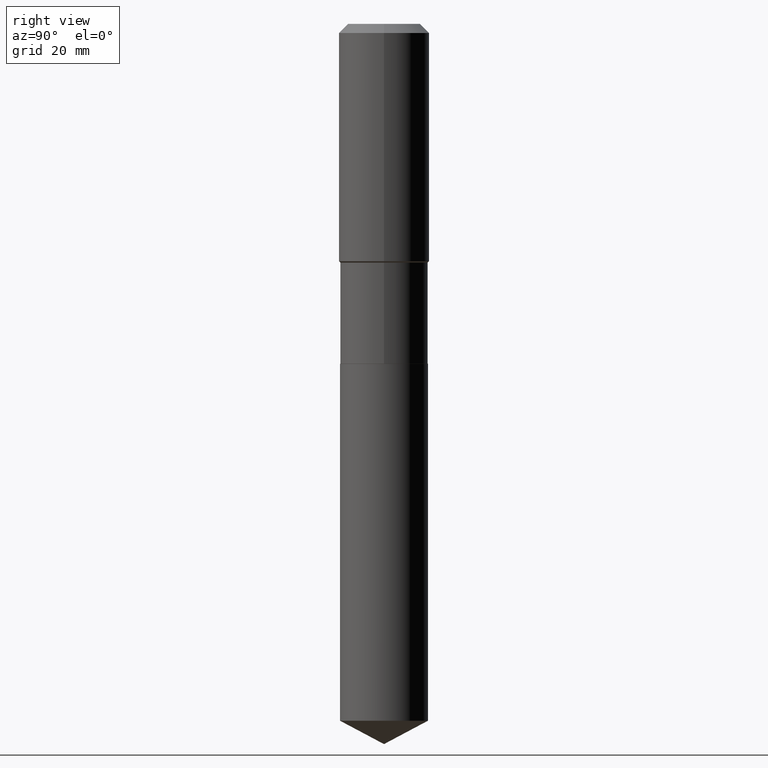
[diagram: clean part render]
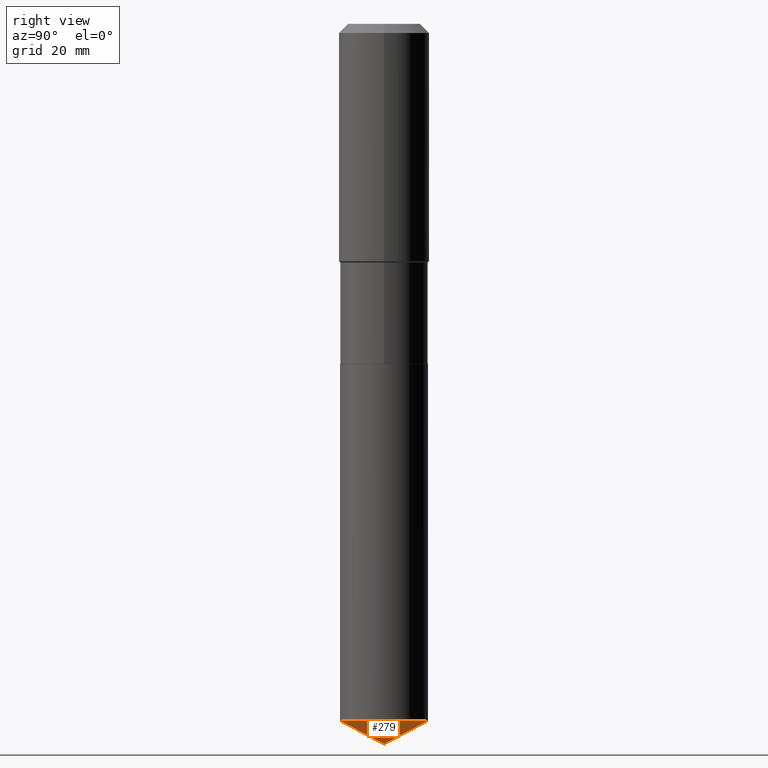
[diagram: same view with one face highlighted and labeled with its STEP entity id]
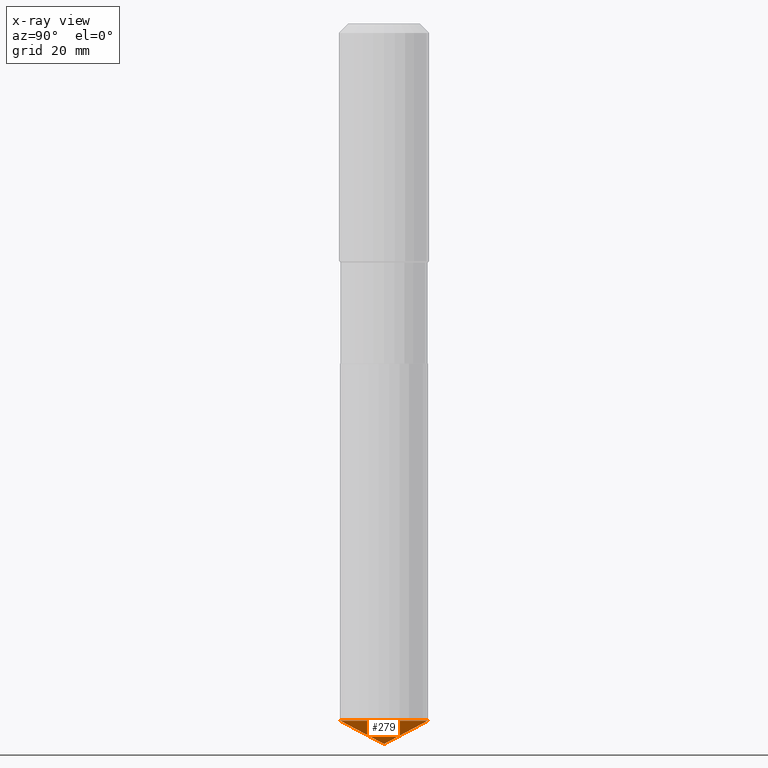
[diagram: x-ray of the same camera — body ghosted, the highlighted face saturated]
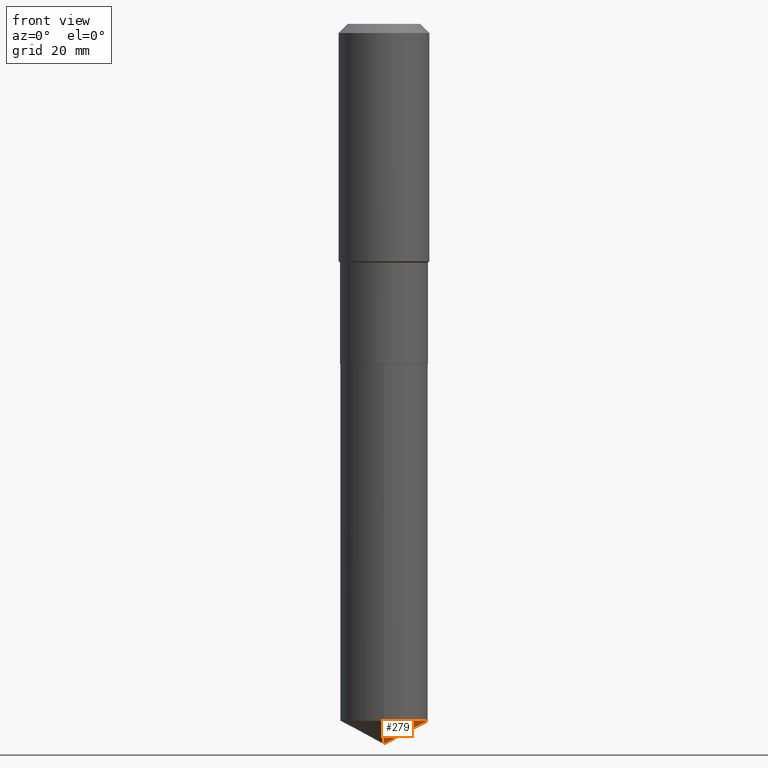
[diagram: same view with one face highlighted and labeled with its STEP entity id]
A machine part, right view. The second image highlights one B-rep face of the part: STEP entity #279.
The next image is the same camera in x-ray: the body ghosted, the highlighted face saturated — about 0% of this face is hidden behind the body in this view.
A second angle (front view) of the same face is appended — the face is thin or edge-on in the first view.
In plain terms, the highlighted conical surface has half-angle 62 deg.
Its self-contained STEP definition (entity closure, byte-faithful):
#2 = ORIENTED_EDGE ( 'NONE', *, *, #67, .F. ) ;
#25 = LINE ( 'NONE', #395, #378 ) ;
#42 = CARTESIAN_POINT ( 'NONE',  ( 1.332065641372455860E-28, -1.901940260002451238E-14, -5.447224882866367857 ) ) ;
#61 = CONICAL_SURFACE ( 'NONE', #189, 74.04434902938356799, 1.082104136236486713 ) ;
#67 = EDGE_CURVE ( 'NONE', #82, #429, #240, .T. ) ;
#70 = CARTESIAN_POINT ( 'NONE',  ( -2.400393420454521259E-15, -0.3437500000000189848, -5.447224882866366080 ) ) ;
#82 = VERTEX_POINT ( 'NONE', #70 ) ;
#83 = CARTESIAN_POINT ( 'NONE',  ( -8.250558734669836059E-28, 1.178096185113600209E-13, 33.74007874015748598 ) ) ;
#84 = VERTEX_POINT ( 'NONE', #157 ) ;
#131 = AXIS2_PLACEMENT_3D ( 'NONE', #42, #309, #260 ) ;
#157 = CARTESIAN_POINT ( 'NONE',  ( 1.376725884386201101E-28, -1.965808610532953700E-14, -5.629999999999999893 ) ) ;
#166 = LINE ( 'NONE', #322, #345 ) ;
#189 = AXIS2_PLACEMENT_3D ( 'NONE', #83, #353, #472 ) ;
#220 = ORIENTED_EDGE ( 'NONE', *, *, #420, .F. ) ;
#235 = ORIENTED_EDGE ( 'NONE', *, *, #396, .T. ) ;
#240 = CIRCLE ( 'NONE', #131, 0.3437500000000000000 ) ;
#260 = DIRECTION ( 'NONE',  ( -6.982962677686265922E-15, -1.000000000000000000, 3.178877665354778874E-15 ) ) ;
#279 = ADVANCED_FACE ( 'NONE', ( #311 ), #61, .T. ) ;
#309 = DIRECTION ( 'NONE',  ( -2.445339048643341394E-29, 3.491667159028337062E-15, 1.000000000000000000 ) ) ;
#311 = FACE_OUTER_BOUND ( 'NONE', #475, .T. ) ;
#322 = CARTESIAN_POINT ( 'NONE',  ( 1.376795429092175195E-28, -1.965709884268561392E-14, -5.629999999999999893 ) ) ;
#345 = VECTOR ( 'NONE', #383, 39.37007874015748143 ) ;
#353 = DIRECTION ( 'NONE',  ( -2.445339048643341394E-29, 3.491667159028337062E-15, 1.000000000000000000 ) ) ;
#366 = DIRECTION ( 'NONE',  ( -6.165590087286835240E-15, -0.8829475928589264333, 0.4694715627858918050 ) ) ;
#378 = VECTOR ( 'NONE', #366, 39.37007874015748143 ) ;
#383 = DIRECTION ( 'NONE',  ( 6.273719981627766076E-15, 0.8829475928589297640, 0.4694715627858855878 ) ) ;
#395 = CARTESIAN_POINT ( 'NONE',  ( 1.376725884386200877E-28, -1.965808610532953700E-14, -5.629999999999999893 ) ) ;
#396 = EDGE_CURVE ( 'NONE', #84, #429, #166, .T. ) ;
#420 = EDGE_CURVE ( 'NONE', #84, #82, #25, .T. ) ;
#429 = VERTEX_POINT ( 'NONE', #478 ) ;
#472 = DIRECTION ( 'NONE',  ( -6.982962677686266711E-15, -1.000000000000000000, 3.541896320645559291E-15 ) ) ;
#475 = EDGE_LOOP ( 'NONE', ( #220, #235, #2 ) ) ;
#478 = CARTESIAN_POINT ( 'NONE',  ( 2.442490654175476918E-15, 0.3437499999999810707, -5.447224882866368745 ) ) ;